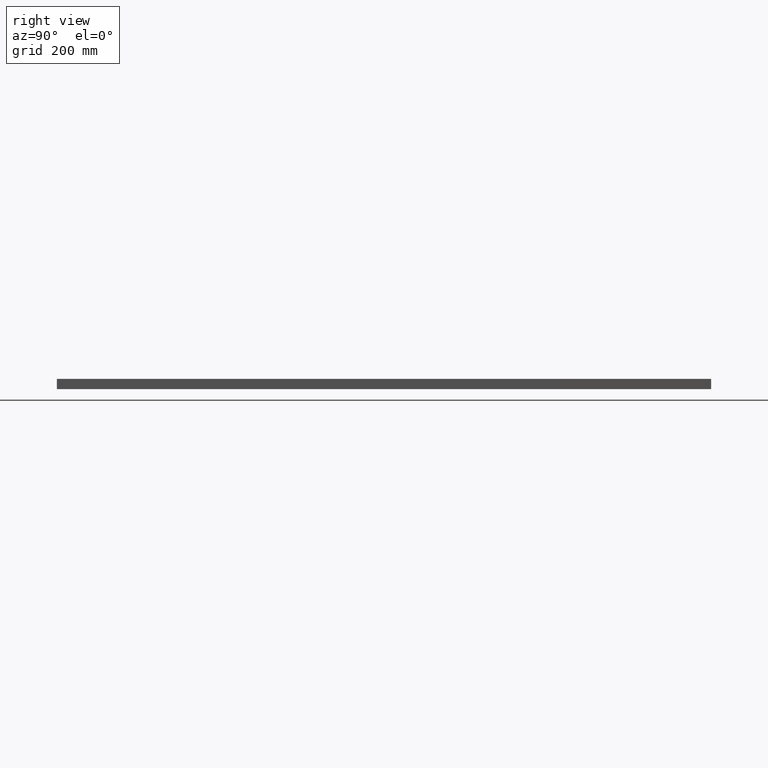
[diagram: clean part render]
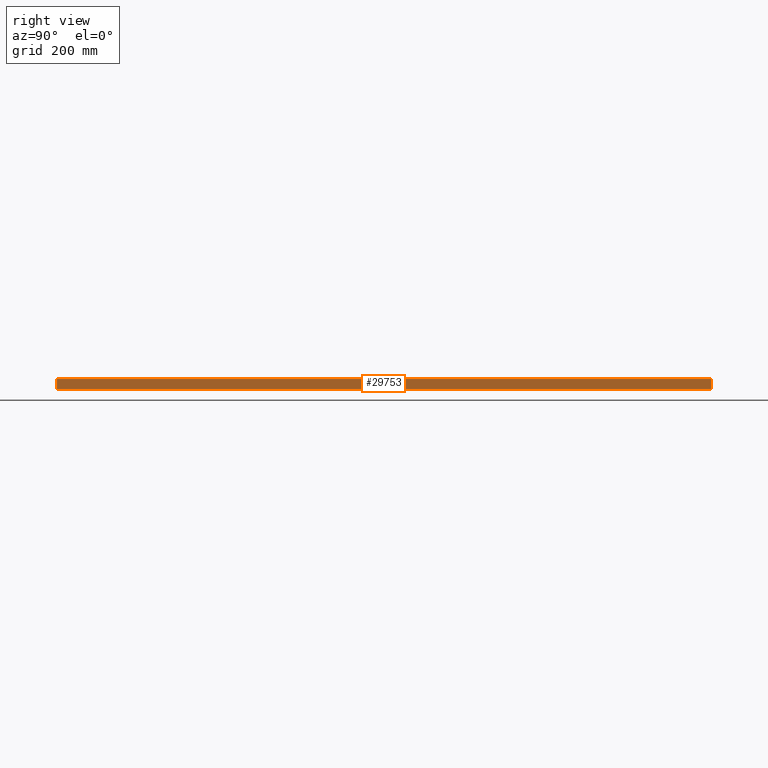
[diagram: same view with one face highlighted and labeled with its STEP entity id]
A machine part, right view. The second image highlights one B-rep face of the part: STEP entity #29753.
In plain terms, the highlighted planar face has unit normal (-1, -0, 0).
Its self-contained STEP definition (entity closure, byte-faithful):
#511 = CARTESIAN_POINT ( 'NONE',  ( 299.9999999999999400, 599.9999999999998900, 19.00000000000000000 ) ) ;
#774 = DIRECTION ( 'NONE',  ( -1.850371707708594300E-016, 1.000000000000000000, -0.0000000000000000000 ) ) ;
#2445 = EDGE_LOOP ( 'NONE', ( #59029, #40166, #15817, #2524 ) ) ;
#2524 = ORIENTED_EDGE ( 'NONE', *, *, #3998, .T. ) ;
#3998 = EDGE_CURVE ( 'NONE', #16130, #44332, #72693, .T. ) ;
#12598 = EDGE_CURVE ( 'NONE', #44332, #72437, #37348, .T. ) ;
#12811 = EDGE_CURVE ( 'NONE', #73179, #72437, #51761, .T. ) ;
#13071 = CARTESIAN_POINT ( 'NONE',  ( 299.9999999999999400, 599.9999999999998900, 19.00000000000000000 ) ) ;
#14105 = CARTESIAN_POINT ( 'NONE',  ( 299.9999999999999400, 599.9999999999998900, 19.00000000000000000 ) ) ;
#15817 = ORIENTED_EDGE ( 'NONE', *, *, #67231, .F. ) ;
#16130 = VERTEX_POINT ( 'NONE', #72697 ) ;
#17192 = DIRECTION ( 'NONE',  ( -1.850371707708594300E-016, 1.000000000000000000, -0.0000000000000000000 ) ) ;
#19914 = DIRECTION ( 'NONE',  ( -0.0000000000000000000, -0.0000000000000000000, -1.000000000000000000 ) ) ;
#29753 = ADVANCED_FACE ( 'NONE', ( #71673 ), #59096, .F. ) ;
#30519 = DIRECTION ( 'NONE',  ( -1.000000000000000000, -1.850371707708594600E-016, 0.0000000000000000000 ) ) ;
#33735 = VECTOR ( 'NONE', #17192, 1000.000000000000000 ) ;
#36406 = VECTOR ( 'NONE', #48496, 1000.000000000000000 ) ;
#37348 = LINE ( 'NONE', #57893, #33735 ) ;
#37371 = CARTESIAN_POINT ( 'NONE',  ( 300.0000000000001700, -600.0000000000001100, 19.00000000000000000 ) ) ;
#40166 = ORIENTED_EDGE ( 'NONE', *, *, #12811, .F. ) ;
#41919 = VECTOR ( 'NONE', #19914, 1000.000000000000000 ) ;
#44332 = VERTEX_POINT ( 'NONE', #69804 ) ;
#45361 = VECTOR ( 'NONE', #774, 1000.000000000000000 ) ;
#48496 = DIRECTION ( 'NONE',  ( -0.0000000000000000000, -0.0000000000000000000, -1.000000000000000000 ) ) ;
#51761 = LINE ( 'NONE', #14105, #36406 ) ;
#57893 = CARTESIAN_POINT ( 'NONE',  ( 299.9999999999999400, 599.9999999999998900, 0.0000000000000000000 ) ) ;
#59029 = ORIENTED_EDGE ( 'NONE', *, *, #12598, .T. ) ;
#59096 = PLANE ( 'NONE',  #68089 ) ;
#60748 = LINE ( 'NONE', #511, #45361 ) ;
#63690 = CARTESIAN_POINT ( 'NONE',  ( 299.9999999999999400, 599.9999999999998900, 0.0000000000000000000 ) ) ;
#64618 = CARTESIAN_POINT ( 'NONE',  ( 299.9999999999999400, 599.9999999999998900, 19.00000000000000000 ) ) ;
#67231 = EDGE_CURVE ( 'NONE', #16130, #73179, #60748, .T. ) ;
#68089 = AXIS2_PLACEMENT_3D ( 'NONE', #13071, #30519, #71006 ) ;
#69804 = CARTESIAN_POINT ( 'NONE',  ( 300.0000000000001700, -600.0000000000001100, 0.0000000000000000000 ) ) ;
#71006 = DIRECTION ( 'NONE',  ( 1.850371707708594600E-016, -1.000000000000000000, 0.0000000000000000000 ) ) ;
#71673 = FACE_OUTER_BOUND ( 'NONE', #2445, .T. ) ;
#72437 = VERTEX_POINT ( 'NONE', #63690 ) ;
#72693 = LINE ( 'NONE', #37371, #41919 ) ;
#72697 = CARTESIAN_POINT ( 'NONE',  ( 300.0000000000001700, -600.0000000000001100, 19.00000000000000000 ) ) ;
#73179 = VERTEX_POINT ( 'NONE', #64618 ) ;